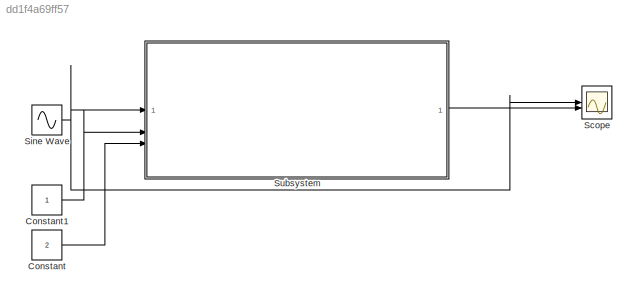
MODEL slx_dd1f4a69ff57
KIND model
CONFIG AbsTol = auto
CONFIG EnableMultiTasking = off
CONFIG FixedStep = auto
CONFIG MaxStep = 0.01
CONFIG MinStep = auto
CONFIG RelTol = 1e-3
CONFIG SampleTimeConstraint = Unconstrained
CONFIG SolverName = VariableStepAuto
CONFIG StartTime = 0.0
CONFIG StopTime = 30.0
BLOCK [Constant] Constant
  Value = 2
BLOCK [Constant] Constant1
BLOCK [Scope] Scope
  ActiveDisplayYMaximum = 2.9760580521084568
  ActiveDisplayYMinimum = -2.5528936295620492
  Floating = off
  GraphicalSettings = {"Style":{"BackgroundColor":[0.12941176470588237,0.12941176470588237,0.12941176470588237],"AxesColor":[0.07058823529411765,0.07058823529411765,0.07058823529411765],"LabelsColor":[0.8509803921568627,0.8509803921568627,0.8509803921568627],"PreserveColors":false,"Visible":[true,true],"LineStyle":["-","-"],"LineWidth":[1.5,1.5],"BarWidth":[0.9,0.9],"LineColor":["auto","auto"],"LineFaceAlpha":[1,1],"Li...<+2122ch>
  LayoutDimensionsString = [1,1]
  MultipleDisplayCache = [{"MaxYLimMag":2.9760580521084568,"MaxYLimReal":2.9760580521084568,"MinYLimMag":0,"MinYLimReal":-2.5528936295620492,"PlotAsMagnitudePhase":false,"ShowGrid":true,"ShowLegend":false,"Title":"%<SignalLabel>","YLabel":""}]
  NumInputPorts = 2
  ScopeFrameLocation = window
  WasSavedAsWebScope = on
  WindowPosition = [962.000000,50.000000,958.000000,1000.000000,]
BLOCK [Sin] Sine Wave
  Amplitude = 2
  Frequency = 2
  SampleTime = 0
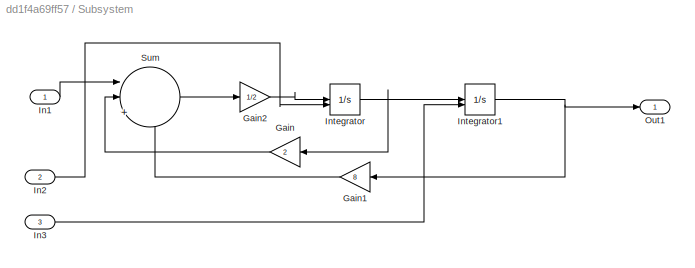
BLOCK [SubSystem] Subsystem
BLOCK [Gain] Subsystem/Gain
  Gain = 2
  NameLocation = top
BLOCK [Gain] Subsystem/Gain1
  Gain = 8
  NameLocation = top
BLOCK [Gain] Subsystem/Gain2
  Gain = 1/2
  NameLocation = top
BLOCK [Inport] Subsystem/In1
BLOCK [Inport] Subsystem/In2
  Port = 2
BLOCK [Inport] Subsystem/In3
  Port = 3
BLOCK [Integrator] Subsystem/Integrator
  InitialCondition = 2
  InitialConditionSource = external
BLOCK [Integrator] Subsystem/Integrator1
  InitialCondition = 1
  InitialConditionSource = external
BLOCK [Outport] Subsystem/Out1
BLOCK [Sum] Subsystem/Sum
  Inputs = ||+--
LINE Constant1:1 -> Subsystem:2
LINE Constant:1 -> Subsystem:3
NET Sine Wave:1 -> Scope:1, Subsystem:1
LINE Subsystem/Gain1:1 -> Subsystem/Sum:3
LINE Subsystem/Gain2:1 -> Subsystem/Integrator:1
LINE Subsystem/Gain:1 -> Subsystem/Sum:2
LINE Subsystem/In1:1 -> Subsystem/Sum:1
LINE Subsystem/In2:1 -> Subsystem/Integrator:2
LINE Subsystem/In3:1 -> Subsystem/Integrator1:2
NET Subsystem/Integrator1:1 -> Subsystem/Gain1:1, Subsystem/Out1:1
NET Subsystem/Integrator:1 -> Subsystem/Gain:1, Subsystem/Integrator1:1
LINE Subsystem/Sum:1 -> Subsystem/Gain2:1
LINE Subsystem:1 -> Scope:2
note: NET lines group one-source signal fan-out (src -> all destinations, sorted); 1:1 wires keep LINE
